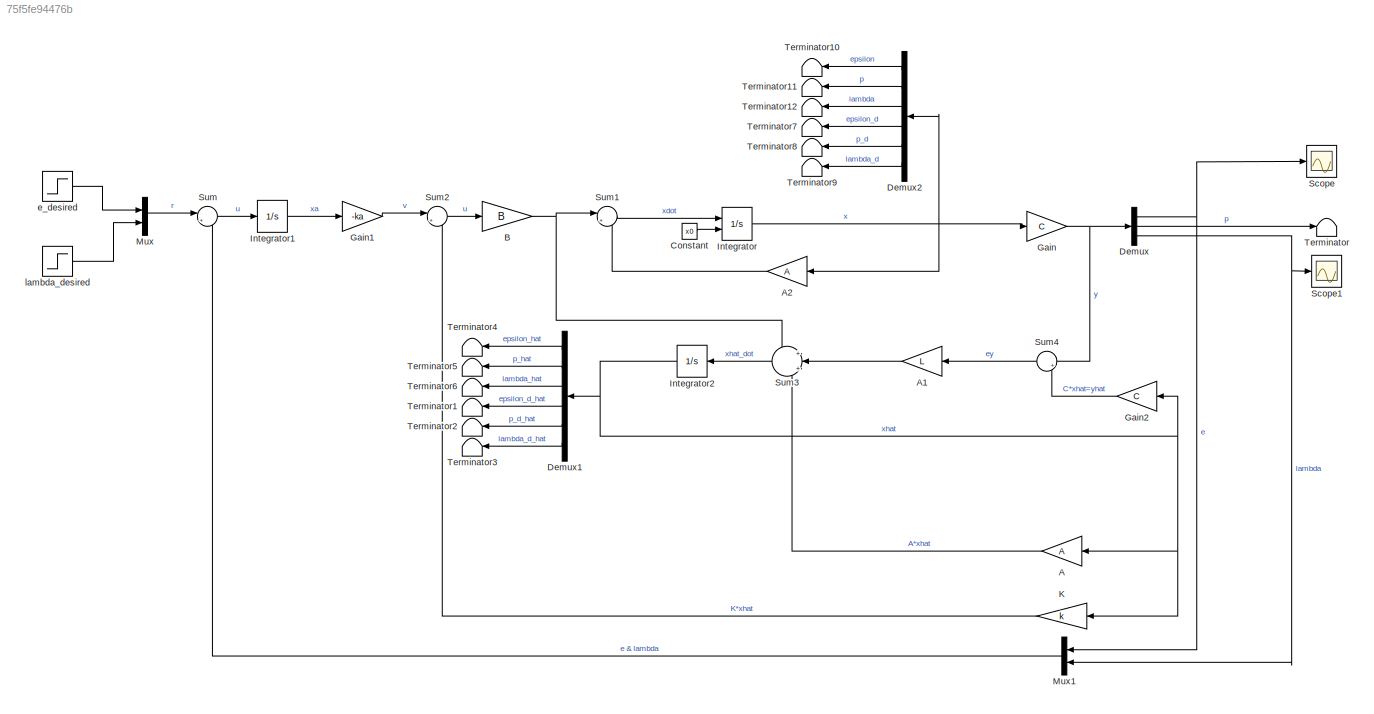
MODEL slx_75f5fe94476b
KIND model
CONFIG AbsTol = auto
CONFIG EnableMultiTasking = off
CONFIG FixedStep = auto
CONFIG MaxStep = auto
CONFIG MinStep = auto
CONFIG RelTol = 1e-3
CONFIG SampleTimeConstraint = Unconstrained
CONFIG SolverName = VariableStepAuto
CONFIG StartTime = 0.0
CONFIG StopTime = 10.0
BLOCK [Gain] A
  Gain = A
  Multiplication = Matrix(K*u)
  NameLocation = top
BLOCK [Gain] A1
  Gain = L
  Multiplication = Matrix(K*u)
  NameLocation = top
BLOCK [Gain] A2
  Gain = A
  Multiplication = Matrix(K*u)
  NameLocation = top
BLOCK [Gain] B
  Gain = B
  Multiplication = Matrix(K*u)
BLOCK [Constant] Constant
  Value = x0
BLOCK [Demux] Demux
  Outputs = 3
  Ports = [1, 3]
BLOCK [Demux] Demux1
  NameLocation = top
  Outputs = 6
  Ports = [1, 6]
BLOCK [Demux] Demux2
  NameLocation = top
  Outputs = 6
  Ports = [1, 6]
BLOCK [Gain] Gain
  Gain = C
  Multiplication = Matrix(K*u)
BLOCK [Gain] Gain1
  Gain = -ka
  Multiplication = Matrix(K*u)
BLOCK [Gain] Gain2
  Gain = C
  Multiplication = Matrix(K*u)
  NameLocation = top
BLOCK [Integrator] Integrator
  InitialConditionSource = external
  Ports = [2, 1]
BLOCK [Integrator] Integrator1
  Ports = [1, 1]
BLOCK [Integrator] Integrator2
  NameLocation = top
  Ports = [1, 1]
BLOCK [Gain] K
  Gain = k
  Multiplication = Matrix(K*u)
  NameLocation = top
BLOCK [Mux] Mux
  DisplayOption = bar
  Inputs = 2
  Ports = [2, 1]
BLOCK [Mux] Mux1
  DisplayOption = bar
  Inputs = 2
  NameLocation = top
  Ports = [2, 1]
BLOCK [Scope] Scope
  Floating = off
  NumInputPorts = 1
  Ports = [1]
  ScopeSpecificationString = Simulink.scopes.TimeScopeBlockCfg('CurrentConfiguration', extmgr.ConfigurationSet(extmgr.Configuration('Core','General UI',true),extmgr.Configuration('Core','Source UI',true),extmgr.Configuration('Sources','WiredSimulink',true,'DataLoggingVariableName','ScopeData1'),extmgr.Configuration('Visuals','Time Domain',true),extmgr.Configuration('Tools','Plot Navigation',true),extmgr.Configuration('Tools',...<+40ch>
BLOCK [Scope] Scope1
  Floating = off
  NumInputPorts = 1
  Ports = [1]
  ScopeSpecificationString = Simulink.scopes.TimeScopeBlockCfg('CurrentConfiguration', extmgr.ConfigurationSet(extmgr.Configuration('Core','General UI',true),extmgr.Configuration('Core','Source UI',true),extmgr.Configuration('Sources','WiredSimulink',true),extmgr.Configuration('Visuals','Time Domain',true),extmgr.Configuration('Tools','Plot Navigation',true),extmgr.Configuration('Tools','Measurements',true)),'Version','2021a'...<+1ch>
BLOCK [Sum] Sum
  Inputs = |+-
  Ports = [2, 1]
BLOCK [Sum] Sum1
  Inputs = |++
  Ports = [2, 1]
BLOCK [Sum] Sum2
  Inputs = |+-
  Ports = [2, 1]
BLOCK [Sum] Sum3
  Inputs = +|+|+
  NameLocation = top
  Ports = [3, 1]
BLOCK [Sum] Sum4
  Inputs = |+-
  NameLocation = top
  Ports = [2, 1]
BLOCK [Terminator] Terminator
BLOCK [Terminator] Terminator1
  NameLocation = top
BLOCK [Terminator] Terminator10
  NameLocation = top
BLOCK [Terminator] Terminator11
  NameLocation = top
BLOCK [Terminator] Terminator12
  NameLocation = top
BLOCK [Terminator] Terminator2
  NameLocation = top
BLOCK [Terminator] Terminator3
  NameLocation = top
BLOCK [Terminator] Terminator4
  NameLocation = top
BLOCK [Terminator] Terminator5
  NameLocation = top
BLOCK [Terminator] Terminator6
  NameLocation = top
BLOCK [Terminator] Terminator7
  NameLocation = top
BLOCK [Terminator] Terminator8
  NameLocation = top
BLOCK [Terminator] Terminator9
  NameLocation = top
BLOCK [Step] e_desired
  After = 0.03
  SampleTime = 0
  Time = 0
BLOCK [Step] lambda_desired
  After = 0.05
  SampleTime = 0
  Time = 0
LINE A1:1 -> Sum3:2
LINE A2:1 -> Sum1:2
LINE A:1 -> Sum3:3
NET B:1 -> Sum1:1, Sum3:1
LINE Constant:1 -> Integrator:2
LINE Demux1:1 -> Terminator4:1
LINE Demux1:2 -> Terminator5:1
LINE Demux1:3 -> Terminator6:1
LINE Demux1:4 -> Terminator1:1
LINE Demux1:5 -> Terminator2:1
LINE Demux1:6 -> Terminator3:1
LINE Demux2:1 -> Terminator10:1
LINE Demux2:2 -> Terminator11:1
LINE Demux2:3 -> Terminator12:1
LINE Demux2:4 -> Terminator7:1
LINE Demux2:5 -> Terminator8:1
LINE Demux2:6 -> Terminator9:1
NET Demux:1 -> Mux1:1, Scope:1
LINE Demux:2 -> Terminator:1
NET Demux:3 -> Mux1:2, Scope1:1
LINE Gain1:1 -> Sum2:1
LINE Gain2:1 -> Sum4:2
NET Gain:1 -> Demux:1, Sum4:1
LINE Integrator1:1 -> Gain1:1
NET Integrator2:1 -> A:1, Demux1:1, Gain2:1, K:1
NET Integrator:1 -> A2:1, Demux2:1, Gain:1
LINE K:1 -> Sum2:2
LINE Mux1:1 -> Sum:2
LINE Mux:1 -> Sum:1
LINE Sum1:1 -> Integrator:1
LINE Sum2:1 -> B:1
LINE Sum3:1 -> Integrator2:1
LINE Sum4:1 -> A1:1
LINE Sum:1 -> Integrator1:1
LINE e_desired:1 -> Mux:1
LINE lambda_desired:1 -> Mux:2
note: NET lines group one-source signal fan-out (src -> all destinations, sorted); 1:1 wires keep LINE
